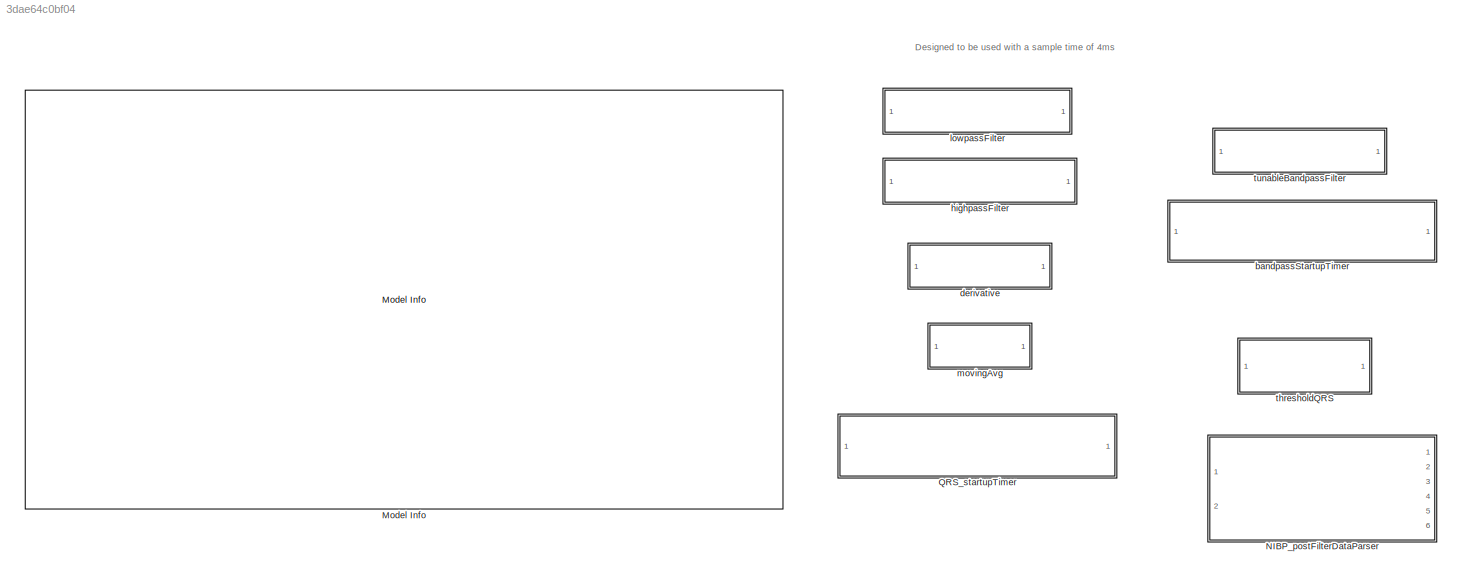
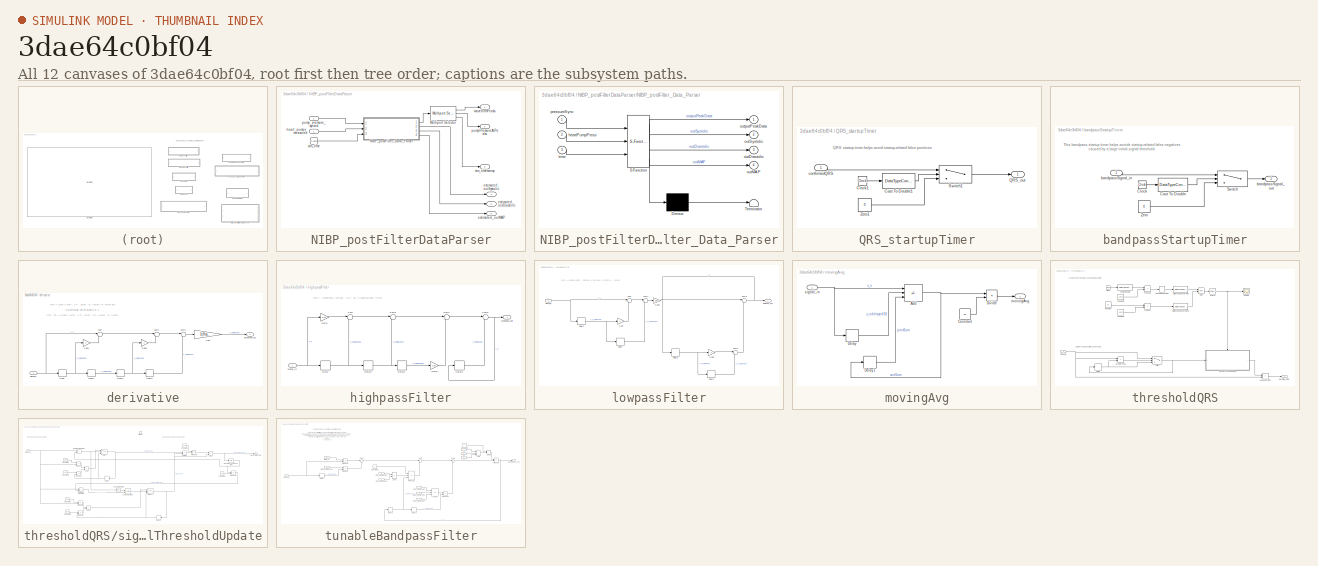
[diagram: thumbnail index - all 12 canvases of the model, root first then tree order]
MODEL slx_3dae64c0bf04
KIND library
CONFIG AbsTol = auto
CONFIG EnableMultiTasking = off
CONFIG FixedStep = auto
CONFIG MaxStep = auto
CONFIG MinStep = auto
CONFIG RelTol = 1e-3
CONFIG SampleTimeConstraint = Unconstrained
CONFIG SolverName = VariableStepAuto
CONFIG StartTime = 0.0
CONFIG StopTime = 10.0
BLOCK [Reference] Model Info  REF=simulink/Model-Wide
Utilities/Model Info
  Ports = []
  SourceBlock = simulink/Model-Wide\nUtilities/Model Info
  SourceProductBaseCode = SL
  SourceType = CMBlock
BLOCK [SubSystem] NIBP_postFilterDataParser
  Ports = [2, 6]
  RequestExecContextInheritance = off
BLOCK [Reference] NIBP_postFilterDataParser/Multiport Selector  REF=dspindex/Multiport
Selector
  Ports = [1, 3]
  SourceBlock = dspindex/Multiport\nSelector
  SourceProductBaseCode = DS
  SourceType = Multiport Selector
BLOCK [SubSystem] NIBP_postFilterDataParser/NIBP_postFilter_Data_Parser
  ErrorFcn = Stateflow.Translate.translate
  PermitHierarchicalResolution = ExplicitOnly
  Ports = [3, 4]
  RequestExecContextInheritance = off
  SFBlockType = MATLAB Function
  TreatAsAtomicUnit = on
BLOCK [Demux] NIBP_postFilterDataParser/NIBP_postFilter_Data_Parser/ Demux 
  Outputs = 1
  Ports = [1, 1]
BLOCK [S-Function] NIBP_postFilterDataParser/NIBP_postFilter_Data_Parser/ SFunction 
  EnableBusSupport = off
  FunctionName = sf_sfun
  PortCounts = [3 5]
  Ports = [3, 5]
  SFcnIsStateOwnerBlock = off
  SFunctionDeploymentMode = off
  Tag = Stateflow S-Function 1
BLOCK [Terminator] NIBP_postFilterDataParser/NIBP_postFilter_Data_Parser/ Terminator 
BLOCK [Inport] NIBP_postFilterDataParser/NIBP_postFilter_Data_Parser/heartPumpPress
  Port = 2
BLOCK [Outport] NIBP_postFilterDataParser/NIBP_postFilter_Data_Parser/outDiastolic
  Port = 3
BLOCK [Outport] NIBP_postFilterDataParser/NIBP_postFilter_Data_Parser/outMAP
  Port = 4
BLOCK [Outport] NIBP_postFilterDataParser/NIBP_postFilter_Data_Parser/outSystolic
  Port = 2
BLOCK [Outport] NIBP_postFilterDataParser/NIBP_postFilter_Data_Parser/outputPeakData
BLOCK [Inport] NIBP_postFilterDataParser/NIBP_postFilter_Data_Parser/pressureSync
BLOCK [Inport] NIBP_postFilterDataParser/NIBP_postFilter_Data_Parser/time
  Port = 3
BLOCK [Outport] NIBP_postFilterDataParser/estimated_outDiastolic
  Port = 5
BLOCK [Outport] NIBP_postFilterDataParser/estimated_outMAP
  Port = 6
BLOCK [Outport] NIBP_postFilterDataParser/estimated_outSystolic
  Port = 4
BLOCK [Inport] NIBP_postFilterDataParser/heart_pumps_measured
  Port = 2
BLOCK [Outport] NIBP_postFilterDataParser/pumpPressureAtPeaks
  Port = 2
BLOCK [Inport] NIBP_postFilterDataParser/pump_pressure_synced
BLOCK [Clock] NIBP_postFilterDataParser/sim_time
BLOCK [Outport] NIBP_postFilterDataParser/sim_timestamp
  Port = 3
BLOCK [Outport] NIBP_postFilterDataParser/waveformPeaks
BLOCK [SubSystem] QRS_startupTimer
  Description = The QRS_startupTimer acts as a temporary buffer right before the final QRS detection output. Any value prior to 3.6 seconds is set to 0. \nAfter 3.6 seconds, the intended confirmed QRS values are allowed through. This buffer helps prevent false positives caused during the \ninitialization of the system prior to 3.6 seconds. Note: The last known false positives occur before 2 seconds, but 3.6 seconds...<+46ch>
  Ports = [1, 1]
  RequestExecContextInheritance = off
BLOCK [DataTypeConversion] QRS_startupTimer/Cast To Double1
  OutDataTypeStr = double
  RndMeth = Floor
  SaturateOnIntegerOverflow = off
BLOCK [Clock] QRS_startupTimer/Clock1
BLOCK [Outport] QRS_startupTimer/QRS_out
BLOCK [Switch] QRS_startupTimer/Switch1
  Criteria = u2 > Threshold
  InputSameDT = off
  SaturateOnIntegerOverflow = off
  Threshold = 900*sampleTime
BLOCK [Constant] QRS_startupTimer/Zero1
  OutDataTypeStr = Inherit: Inherit via back propagation
  Value = 0
BLOCK [Inport] QRS_startupTimer/confirmedQRS
BLOCK [SubSystem] bandpassStartupTimer
  Description = The bandpassStartupTimer acts as a temporary buffer between the first 0.5 seconds of the chosen bandpass and the derivative filters.\nOutputs 0 prior to the 0.5 seconds, and then passes the bandpass filter otuput into the derivative filter after the 0.5 seconds. This component \nhelps eliminate the possiblility of false negatives caused by an abnormally high signal threshold initial values that coul...<+29ch>
  Ports = [1, 1]
  RequestExecContextInheritance = off
BLOCK [DataTypeConversion] bandpassStartupTimer/Cast To Double
  OutDataTypeStr = double
  RndMeth = Floor
  SaturateOnIntegerOverflow = off
BLOCK [Clock] bandpassStartupTimer/Clock
BLOCK [Switch] bandpassStartupTimer/Switch
  Criteria = u2 > Threshold
  InputSameDT = off
  SaturateOnIntegerOverflow = off
  Threshold = 125*sampleTime
BLOCK [Constant] bandpassStartupTimer/Zero
  OutDataTypeStr = Inherit: Inherit via back propagation
  Value = 0
BLOCK [Inport] bandpassStartupTimer/bandpassSignal_in
BLOCK [Outport] bandpassStartupTimer/bandpassSignal_out
BLOCK [SubSystem] derivative
  Description = The derivative filter is meant to be placed after a bandpass filter, and is designed to further amplify the QRS wave \nmagnitude since the QRS wave's rate of change is much larger than that of the remaining frequency components' \nmagnitude.
  Ports = [1, 1]
  RequestExecContextInheritance = off
BLOCK [Delay] derivative/Delay
  DelayLength = 1
  InitialCondition = 0
  InputPortMap = u0
  Ports = [1, 1]
BLOCK [Delay] derivative/Delay1
  DelayLength = 1
  InitialCondition = 0
  InputPortMap = u0
  Ports = [1, 1]
BLOCK [Delay] derivative/Delay2
  DelayLength = 1
  InitialCondition = 0
  InputPortMap = u0
  Ports = [1, 1]
BLOCK [Delay] derivative/Delay3
  DelayLength = 1
  InitialCondition = 0
  InputPortMap = u0
  Ports = [1, 1]
BLOCK [Gain] derivative/Gain
  Gain = 1/(8*sampleTime)
BLOCK [Gain] derivative/Gain1
  Gain = 2
BLOCK [Gain] derivative/Gain2
  Gain = 2
BLOCK [Sum] derivative/Sum
  Inputs = |++
  Ports = [2, 1]
BLOCK [Sum] derivative/Sum1
  Inputs = |+-
  Ports = [2, 1]
BLOCK [Sum] derivative/Sum2
  Inputs = |+-
  Ports = [2, 1]
BLOCK [Outport] derivative/derivative_out
BLOCK [Inport] derivative/signal_in
BLOCK [SubSystem] highpassFilter
  Description = Highpass filter described by the following difference equation:\ny[n] = - (1/32)*x[n] + x[n-16] - x [n - 17] + (1/32)*x[n-32] + y[n-1]
  Ports = [1, 1]
  RequestExecContextInheritance = off
BLOCK [Delay] highpassFilter/Delay
  DelayLength = 16
  InitialCondition = 0
  InputPortMap = u0
  Ports = [1, 1]
BLOCK [Delay] highpassFilter/Delay1
  DelayLength = 15
  InitialCondition = 0
  InputPortMap = u0
  Ports = [1, 1]
BLOCK [Delay] highpassFilter/Delay2
  DelayLength = 1
  InitialCondition = 0
  InputPortMap = u0
  Ports = [1, 1]
BLOCK [Delay] highpassFilter/Delay3
  DelayLength = 1
  InitialCondition = 0
  InputPortMap = u0
  Ports = [1, 1]
BLOCK [Gain] highpassFilter/Gain1
  Gain = 1/32
BLOCK [Gain] highpassFilter/Gain2
  Gain = 1/32
BLOCK [Sum] highpassFilter/Sum
  Inputs = |-+
  Ports = [2, 1]
BLOCK [Sum] highpassFilter/Sum1
  Inputs = |++
  Ports = [2, 1]
BLOCK [Sum] highpassFilter/Sum2
  Inputs = |++
  Ports = [2, 1]
BLOCK [Sum] highpassFilter/Sum3
  Inputs = |+-
  Ports = [2, 1]
BLOCK [Outport] highpassFilter/highpass_out
BLOCK [Inport] highpassFilter/signal_in
BLOCK [SubSystem] lowpassFilter
  Description = Lowpass filter described by the below difference equation:\ny[n] = (1/36)*(x[n] - 2x[n-6] + x[n-12]) + 2y[n-1] - y[n-2]
  Ports = [1, 1]
  RequestExecContextInheritance = off
BLOCK [Delay] lowpassFilter/Delay
  DelayLength = 6
  InitialCondition = 0
  InputPortMap = u0
  Ports = [1, 1]
BLOCK [Delay] lowpassFilter/Delay1
  DelayLength = 6
  InitialCondition = 0
  InputPortMap = u0
  Ports = [1, 1]
BLOCK [Delay] lowpassFilter/Delay2
  DelayLength = 1
  InitialCondition = 0
  InputPortMap = u0
  Ports = [1, 1]
BLOCK [Delay] lowpassFilter/Delay3
  DelayLength = 1
  InitialCondition = 0
  InputPortMap = u0
  Ports = [1, 1]
BLOCK [Gain] lowpassFilter/Gain
  Gain = 2
BLOCK [Gain] lowpassFilter/Gain1
  Gain = 2
BLOCK [Gain] lowpassFilter/Gain2
  Gain = 1/36
BLOCK [Sum] lowpassFilter/Sum
  Inputs = |+-
  Ports = [2, 1]
BLOCK [Sum] lowpassFilter/Sum1
  Inputs = |++
  Ports = [2, 1]
BLOCK [Sum] lowpassFilter/Sum2
  Inputs = |+-
  Ports = [2, 1]
BLOCK [Sum] lowpassFilter/Sum3
  Inputs = |++
  Ports = [2, 1]
BLOCK [Outport] lowpassFilter/lowpass_out
BLOCK [Inport] lowpassFilter/signal_in
BLOCK [SubSystem] movingAvg
  Description = The movingAvg (moving average) filter is designed to be placed after a squaring function (which should have been placed right after the derivative filter),\nand is a done so that the area where the QRS is present is expanded in regards to timespan. \n\nThe moving average filter takes the average of the most recent 38 samples. This is implemented with a running sum of the most recent 38 samples \nwith ...<+112ch>
  Ports = [1, 1]
  RequestExecContextInheritance = off
BLOCK [Sum] movingAvg/Add
  IconShape = rectangular
  Inputs = +-+
  Ports = [3, 1]
BLOCK [Constant] movingAvg/Constant
  Value = 38
BLOCK [Delay] movingAvg/Delay
  DelayLength = 38
  InitialCondition = 0
  InputPortMap = u0
  Ports = [1, 1]
BLOCK [Delay] movingAvg/Delay1
  DelayLength = 1
  InitialCondition = 0
  InputPortMap = u0
  Ports = [1, 1]
BLOCK [Product] movingAvg/Divide
  Inputs = */
  Ports = [2, 1]
BLOCK [Outport] movingAvg/movingAvg
BLOCK [Inport] movingAvg/signal_in
BLOCK [SubSystem] thresholdQRS
  Description = The tresholdQRS is a block that is used at two different locations in the Pan-Tompkin Algorithm. \nThe first location this block is used is right after the chosen bandpass filter and right before a delay that is placed to sync the output \nof the first thresholdQRS with that of the second thresholdQRS. The signal that comes out of the delay is placed through an AND gate \nwith the signal that comes o...<+356ch>
  Ports = [1, 1]
  RequestExecContextInheritance = off
BLOCK [DataTypeConversion] thresholdQRS/Cast To Double
  OutDataTypeStr = double
  RndMeth = Floor
  SaturateOnIntegerOverflow = off
BLOCK [Clock] thresholdQRS/Clock
BLOCK [Constant] thresholdQRS/Constant
  Value = 0.1
BLOCK [Constant] thresholdQRS/Constant1
  Value = 1000
BLOCK [Constant] thresholdQRS/Constant2
  Value = 1000
BLOCK [DataTypeConversion] thresholdQRS/Data Type Conversion
  OutDataTypeStr = uint32
  RndMeth = Floor
  SaturateOnIntegerOverflow = off
BLOCK [DataTypeConversion] thresholdQRS/Data Type Conversion1
  OutDataTypeStr = uint32
  RndMeth = Floor
  SaturateOnIntegerOverflow = off
BLOCK [Delay] thresholdQRS/Delay
  DelayLength = 1
  InitialCondition = 0
  InputPortMap = u0
  Ports = [1, 1]
BLOCK [RelationalOperator] thresholdQRS/GreaterThan
  InputSameDT = off
  Operator = >
  OutDataTypeStr = boolean
  Ports = [2, 1]
  RndMeth = Simplest
BLOCK [Reference] thresholdQRS/IsZero  REF=simulink/Logic and Bit
Operations/Compare
To Zero
  Ports = [1, 1]
  SourceBlock = simulink/Logic and Bit\nOperations/Compare\nTo Zero
  SourceProductBaseCode = SL
  SourceType = Compare To Zero
BLOCK [Math] thresholdQRS/Mod
  Operator = mod
  Ports = [2, 1]
BLOCK [Product] thresholdQRS/Product
  Ports = [2, 1]
BLOCK [Product] thresholdQRS/Product1
  Ports = [2, 1]
BLOCK [Rounding] thresholdQRS/Rounding Function
BLOCK [Scope] thresholdQRS/Scope
  Floating = off
  NumInputPorts = 1
  Ports = [1]
  ScopeSpecificationString = Simulink.scopes.TimeScopeBlockCfg('CurrentConfiguration', extmgr.ConfigurationSet(extmgr.Configuration('Core','General UI',true),extmgr.Configuration('Core','Source UI',true),extmgr.Configuration('Sources','WiredSimulink',true,'DataLoggingVariableName','ScopeData1'),extmgr.Configuration('Visuals','Time Domain',true,'SerializedDisplays',{struct('MinYLimReal','-0.125','MaxYLimReal','1.125','YLabelRe...<+1408ch>
BLOCK [Switch] thresholdQRS/Switch
  Criteria = u2 > Threshold
  InputSameDT = off
  SaturateOnIntegerOverflow = off
BLOCK [RelationalOperator] thresholdQRS/checkForQRS
  InputSameDT = off
  Operator = <
  OutDataTypeStr = boolean
  Ports = [2, 1]
  RndMeth = Simplest
BLOCK [Outport] thresholdQRS/possible_QRS
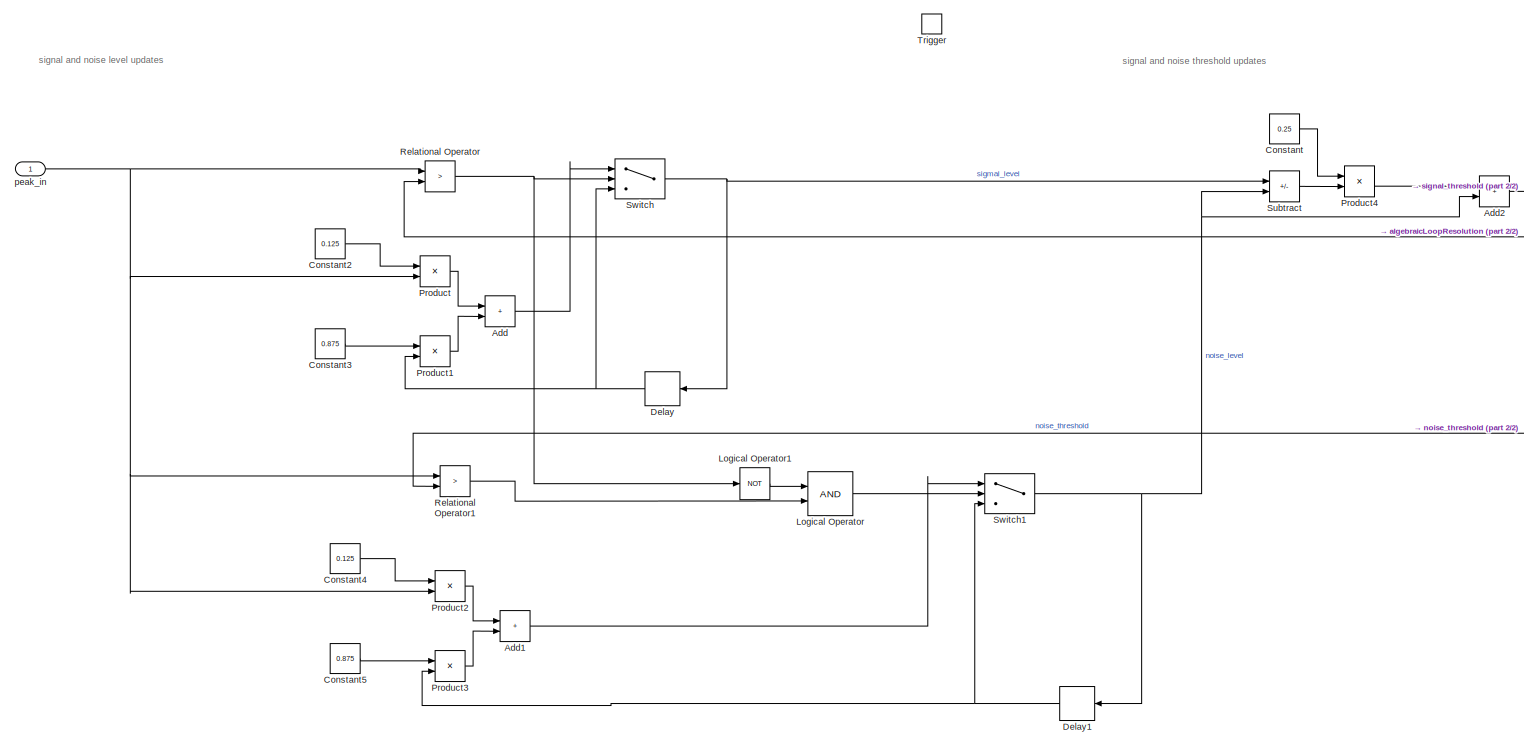
[diagram: thresholdQRS/signalThresholdUpdate - part 1/2, most of the canvas]
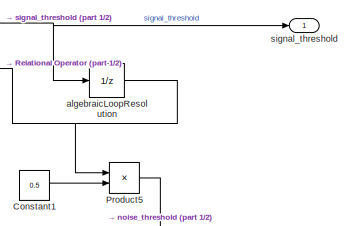
[diagram: thresholdQRS/signalThresholdUpdate - part 2/2, middle right region]
BLOCK [SubSystem] thresholdQRS/signalThresholdUpdate
  Ports = [1, 1, 0, 1]
  RequestExecContextInheritance = off
BLOCK [Sum] thresholdQRS/signalThresholdUpdate/Add
  IconShape = rectangular
  Ports = [2, 1]
BLOCK [Sum] thresholdQRS/signalThresholdUpdate/Add1
  IconShape = rectangular
  Ports = [2, 1]
BLOCK [Sum] thresholdQRS/signalThresholdUpdate/Add2
  IconShape = rectangular
  Ports = [2, 1]
BLOCK [Constant] thresholdQRS/signalThresholdUpdate/Constant
  Value = 0.25
BLOCK [Constant] thresholdQRS/signalThresholdUpdate/Constant1
  Value = 0.5
BLOCK [Constant] thresholdQRS/signalThresholdUpdate/Constant2
  Value = 0.125
BLOCK [Constant] thresholdQRS/signalThresholdUpdate/Constant3
  Value = 0.875
BLOCK [Constant] thresholdQRS/signalThresholdUpdate/Constant4
  Value = 0.125
BLOCK [Constant] thresholdQRS/signalThresholdUpdate/Constant5
  Value = 0.875
BLOCK [Delay] thresholdQRS/signalThresholdUpdate/Delay
  DelayLength = 1
  InitialCondition = 0
  InputPortMap = u0
  Ports = [1, 1]
BLOCK [Delay] thresholdQRS/signalThresholdUpdate/Delay1
  DelayLength = 1
  InitialCondition = 0
  InputPortMap = u0
  Ports = [1, 1]
BLOCK [Logic] thresholdQRS/signalThresholdUpdate/Logical Operator
  AllPortsSameDT = off
  IconShape = distinctive
  OutDataTypeStr = boolean
  Ports = [2, 1]
BLOCK [Logic] thresholdQRS/signalThresholdUpdate/Logical Operator1
  AllPortsSameDT = off
  IconShape = distinctive
  Operator = NOT
  OutDataTypeStr = boolean
  Ports = [1, 1]
BLOCK [Product] thresholdQRS/signalThresholdUpdate/Product
  Ports = [2, 1]
BLOCK [Product] thresholdQRS/signalThresholdUpdate/Product1
  Ports = [2, 1]
BLOCK [Product] thresholdQRS/signalThresholdUpdate/Product2
  Ports = [2, 1]
BLOCK [Product] thresholdQRS/signalThresholdUpdate/Product3
  Ports = [2, 1]
BLOCK [Product] thresholdQRS/signalThresholdUpdate/Product4
  Ports = [2, 1]
BLOCK [Product] thresholdQRS/signalThresholdUpdate/Product5
  Ports = [2, 1]
BLOCK [RelationalOperator] thresholdQRS/signalThresholdUpdate/Relational Operator
  InputSameDT = off
  Operator = >
  OutDataTypeStr = boolean
  Ports = [2, 1]
  RndMeth = Simplest
BLOCK [RelationalOperator] thresholdQRS/signalThresholdUpdate/Relational Operator1
  InputSameDT = off
  Operator = >
  OutDataTypeStr = boolean
  Ports = [2, 1]
  RndMeth = Simplest
BLOCK [Sum] thresholdQRS/signalThresholdUpdate/Subtract
  IconShape = rectangular
  Inputs = +-
  Ports = [2, 1]
BLOCK [Switch] thresholdQRS/signalThresholdUpdate/Switch
  Criteria = u2 > Threshold
  InputSameDT = off
  SaturateOnIntegerOverflow = off
BLOCK [Switch] thresholdQRS/signalThresholdUpdate/Switch1
  Criteria = u2 > Threshold
  InputSameDT = off
  SaturateOnIntegerOverflow = off
BLOCK [TriggerPort] thresholdQRS/signalThresholdUpdate/Trigger
  PortDimensions = 1
  Ports = []
  StatesWhenEnabling = held
  VariantControl = (inherit)
BLOCK [UnitDelay] thresholdQRS/signalThresholdUpdate/algebraicLoopResolution
  HasFrameUpgradeWarning = on
  SampleTime = -1
BLOCK [Inport] thresholdQRS/signalThresholdUpdate/peak_in
BLOCK [Outport] thresholdQRS/signalThresholdUpdate/signal_threshold
BLOCK [Inport] thresholdQRS/signal_in
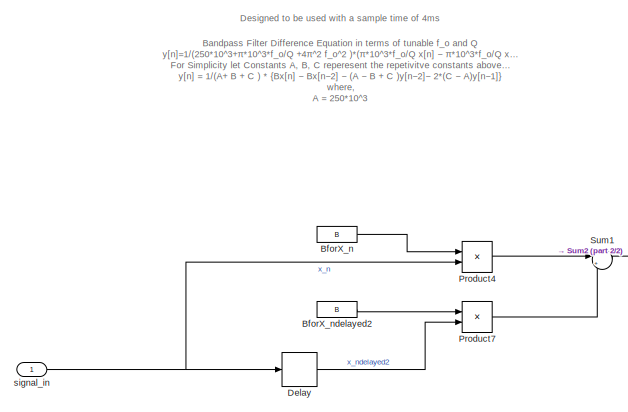
[diagram: tunableBandpassFilter - part 1/2, top left region]
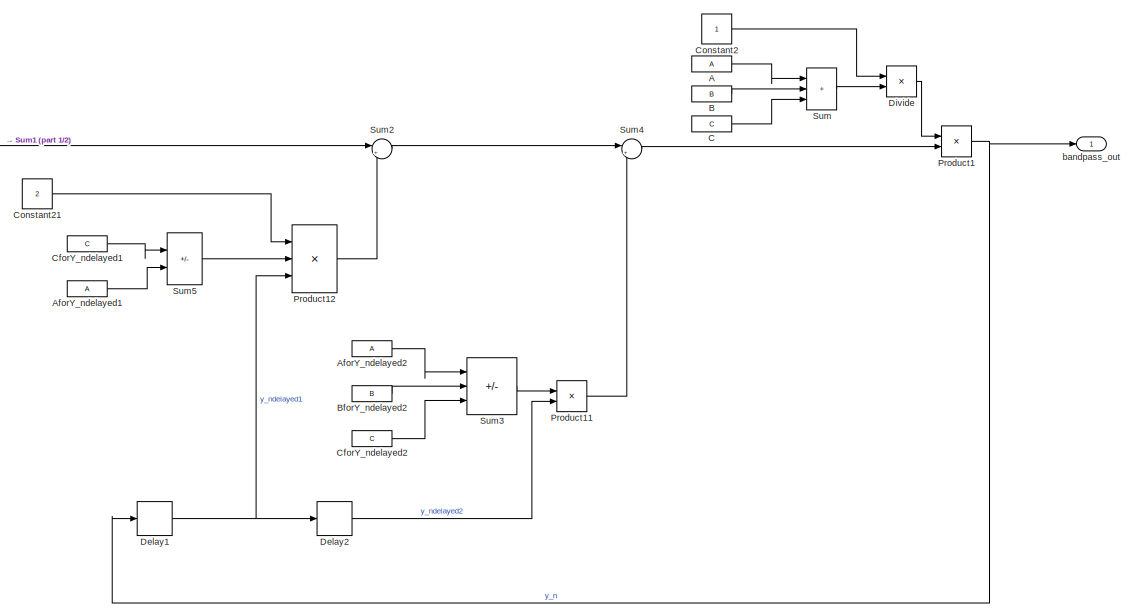
[diagram: tunableBandpassFilter - part 2/2, right side, full height]
BLOCK [SubSystem] tunableBandpassFilter
  Description = Bandpass Filter described by the following diference equation in terms of tunable centerFrequency f_o and qualityFactor Q:\ny[n]=1/(250*10^3+π*10^3*f_o/Q  +4π^2 f_o^2 )*(π*10^3*f_o/Q x[n]  − π*10^3*f_o/Q x[n−2]  −(250*10^3−π*10^3*f_o/Q  +4π^2 f_o^2 )y[n−2]−2*(4π^2 f_o^2  −250*10^3 )y[n−1])\n\n\nFor simplicity, let constants A, B, and C be subsystems that contain the corresponding defintiions of the co...<+148ch>
  Ports = [1, 1]
  RequestExecContextInheritance = off
BLOCK [Reference] tunableBandpassFilter/A  REF=coefficientsOfTunableBandpassFilter/A
  Ports = [0, 1]
  SourceBlock = coefficientsOfTunableBandpassFilter/A
  SourceType = SubSystem
BLOCK [Reference] tunableBandpassFilter/AforY_ndelayed1  REF=coefficientsOfTunableBandpassFilter/A
  Ports = [0, 1]
  SourceBlock = coefficientsOfTunableBandpassFilter/A
  SourceType = SubSystem
BLOCK [Reference] tunableBandpassFilter/AforY_ndelayed2  REF=coefficientsOfTunableBandpassFilter/A
  Ports = [0, 1]
  SourceBlock = coefficientsOfTunableBandpassFilter/A
  SourceType = SubSystem
BLOCK [Reference] tunableBandpassFilter/B  REF=coefficientsOfTunableBandpassFilter/B
  Ports = [0, 1]
  SourceBlock = coefficientsOfTunableBandpassFilter/B
  SourceType = SubSystem
BLOCK [Reference] tunableBandpassFilter/BforX_n  REF=coefficientsOfTunableBandpassFilter/B
  Ports = [0, 1]
  SourceBlock = coefficientsOfTunableBandpassFilter/B
  SourceType = SubSystem
BLOCK [Reference] tunableBandpassFilter/BforX_ndelayed2  REF=coefficientsOfTunableBandpassFilter/B
  Ports = [0, 1]
  SourceBlock = coefficientsOfTunableBandpassFilter/B
  SourceType = SubSystem
BLOCK [Reference] tunableBandpassFilter/BforY_ndelayed2  REF=coefficientsOfTunableBandpassFilter/B
  Ports = [0, 1]
  SourceBlock = coefficientsOfTunableBandpassFilter/B
  SourceType = SubSystem
BLOCK [Reference] tunableBandpassFilter/C  REF=coefficientsOfTunableBandpassFilter/C
  Ports = [0, 1]
  SourceBlock = coefficientsOfTunableBandpassFilter/C
  SourceType = SubSystem
BLOCK [Reference] tunableBandpassFilter/CforY_ndelayed1  REF=coefficientsOfTunableBandpassFilter/C
  Ports = [0, 1]
  SourceBlock = coefficientsOfTunableBandpassFilter/C
  SourceType = SubSystem
BLOCK [Reference] tunableBandpassFilter/CforY_ndelayed2  REF=coefficientsOfTunableBandpassFilter/C
  Ports = [0, 1]
  SourceBlock = coefficientsOfTunableBandpassFilter/C
  SourceType = SubSystem
BLOCK [Constant] tunableBandpassFilter/Constant2
BLOCK [Constant] tunableBandpassFilter/Constant21
  Value = 2
BLOCK [Delay] tunableBandpassFilter/Delay
  InitialCondition = 0
  InputPortMap = u0
  Ports = [1, 1]
BLOCK [Delay] tunableBandpassFilter/Delay1
  DelayLength = 1
  InitialCondition = 0
  InputPortMap = u0
  Ports = [1, 1]
BLOCK [Delay] tunableBandpassFilter/Delay2
  DelayLength = 1
  InitialCondition = 0
  InputPortMap = u0
  Ports = [1, 1]
BLOCK [Product] tunableBandpassFilter/Divide
  Inputs = */
  Ports = [2, 1]
BLOCK [Product] tunableBandpassFilter/Product1
  Ports = [2, 1]
BLOCK [Product] tunableBandpassFilter/Product11
  Ports = [2, 1]
BLOCK [Product] tunableBandpassFilter/Product12
  Inputs = 3
  Ports = [3, 1]
BLOCK [Product] tunableBandpassFilter/Product4
  Ports = [2, 1]
BLOCK [Product] tunableBandpassFilter/Product7
  Ports = [2, 1]
BLOCK [Sum] tunableBandpassFilter/Sum
  IconShape = rectangular
  Inputs = |+++
  Ports = [3, 1]
BLOCK [Sum] tunableBandpassFilter/Sum1
  Inputs = |+-
  Ports = [2, 1]
BLOCK [Sum] tunableBandpassFilter/Sum2
  Inputs = |+-
  Ports = [2, 1]
BLOCK [Sum] tunableBandpassFilter/Sum3
  IconShape = rectangular
  Inputs = |+-+
  Ports = [3, 1]
BLOCK [Sum] tunableBandpassFilter/Sum4
  Inputs = |+-
  Ports = [2, 1]
BLOCK [Sum] tunableBandpassFilter/Sum5
  IconShape = rectangular
  Inputs = |+-
  Ports = [2, 1]
BLOCK [Outport] tunableBandpassFilter/bandpass_out
BLOCK [Inport] tunableBandpassFilter/signal_in
ANNOTATION (root): Designed to be used with a sample time of 4ms
ANNOTATION QRS_startupTimer: QRS startup timer helps avoid startup-related false positives
ANNOTATION bandpassStartupTimer: This bandpass startup timer helps avoids startup-related false negatives caused by a large initial signal threshold.
ANNOTATION derivative: y(nT) = (1/8T) [-x(nT - 2 T) - 2x(nT - T) + 2x(nT + T) +x(nT+ 2T)] Mathematically shifted all delays by 2 y(nT - 2T) = (1/(8T)) [-x(nT - 4 T) - 2x(nT - 3 T) + 2x(nT - T) + x(nT)]
ANNOTATION highpassFilter: y[n] = - (1/32)*x[n] + x[n-16] - x [n - 17] + (1/32)*x[n-32] + y[n-1]
ANNOTATION lowpassFilter: y[n] = (1/36)*(x[n] - 2x[n-6] + x[n-12]) + 2y[n-1] - y[n-2]
ANNOTATION thresholdQRS: 100ms clock for signal threshold update enabling
ANNOTATION thresholdQRS: Obtain largest peak within 100ms section
ANNOTATION thresholdQRS/signalThresholdUpdate: signal and noise level updates
ANNOTATION thresholdQRS/signalThresholdUpdate: signal and noise threshold updates
ANNOTATION tunableBandpassFilter: Bandpass Filter Difference Equation in terms of tunable f_o and Q y[n]=1/(250*10^3+π*10^3*f_o/Q +4π^2 f_o^2 )*(π*10^3*f_o/Q x[n] − π*10^3*f_o/Q x[n−2] −(250*10^3−π*10^3*f_o/Q +4π^2 f_o^2 )y[n−2]−2*(4π^2 f_o^2 −250*10^3 )y[n−1]) For Simplicity let Constants A, B, C reperesent the repetivitve constants above and create subsystems to contain the defintiion of A, B, C: y[n] = 1/(A+ B + C ) * {Bx[n] − ...<+98ch>
ANNOTATION tunableBandpassFilter: Designed to be used with a sample time of 4ms
LINE NIBP_postFilterDataParser/Multiport Selector:1 -> NIBP_postFilterDataParser/waveformPeaks:1
LINE NIBP_postFilterDataParser/Multiport Selector:2 -> NIBP_postFilterDataParser/pumpPressureAtPeaks:1
LINE NIBP_postFilterDataParser/Multiport Selector:3 -> NIBP_postFilterDataParser/sim_timestamp:1
LINE NIBP_postFilterDataParser/NIBP_postFilter_Data_Parser:1 -> NIBP_postFilterDataParser/Multiport Selector:1
LINE NIBP_postFilterDataParser/NIBP_postFilter_Data_Parser:2 -> NIBP_postFilterDataParser/estimated_outSystolic:1
LINE NIBP_postFilterDataParser/NIBP_postFilter_Data_Parser:3 -> NIBP_postFilterDataParser/estimated_outDiastolic:1
LINE NIBP_postFilterDataParser/NIBP_postFilter_Data_Parser:4 -> NIBP_postFilterDataParser/estimated_outMAP:1
LINE NIBP_postFilterDataParser/heart_pumps_measured:1 -> NIBP_postFilterDataParser/NIBP_postFilter_Data_Parser:2
LINE NIBP_postFilterDataParser/pump_pressure_synced:1 -> NIBP_postFilterDataParser/NIBP_postFilter_Data_Parser:1
LINE NIBP_postFilterDataParser/sim_time:1 -> NIBP_postFilterDataParser/NIBP_postFilter_Data_Parser:3
LINE QRS_startupTimer/Cast To Double1:1 -> QRS_startupTimer/Switch1:2
LINE QRS_startupTimer/Clock1:1 -> QRS_startupTimer/Cast To Double1:1
LINE QRS_startupTimer/Switch1:1 -> QRS_startupTimer/QRS_out:1
LINE QRS_startupTimer/Zero1:1 -> QRS_startupTimer/Switch1:3
LINE QRS_startupTimer/confirmedQRS:1 -> QRS_startupTimer/Switch1:1
LINE bandpassStartupTimer/Cast To Double:1 -> bandpassStartupTimer/Switch:2
LINE bandpassStartupTimer/Clock:1 -> bandpassStartupTimer/Cast To Double:1
LINE bandpassStartupTimer/Switch:1 -> bandpassStartupTimer/bandpassSignal_out:1
LINE bandpassStartupTimer/Zero:1 -> bandpassStartupTimer/Switch:3
LINE bandpassStartupTimer/bandpassSignal_in:1 -> bandpassStartupTimer/Switch:1
LINE derivative/Delay1:1 -> derivative/Delay2:1
NET derivative/Delay2:1 -> derivative/Delay3:1, derivative/Gain2:1
LINE derivative/Delay3:1 -> derivative/Sum2:2
NET derivative/Delay:1 -> derivative/Delay1:1, derivative/Gain1:1
LINE derivative/Gain1:1 -> derivative/Sum:2
LINE derivative/Gain2:1 -> derivative/Sum1:2
LINE derivative/Gain:1 -> derivative/derivative_out:1
LINE derivative/Sum1:1 -> derivative/Sum2:1
LINE derivative/Sum2:1 -> derivative/Gain:1
LINE derivative/Sum:1 -> derivative/Sum1:1
NET derivative/signal_in:1 -> derivative/Delay:1, derivative/Sum:1
LINE highpassFilter/Delay1:1 -> highpassFilter/Gain2:1
LINE highpassFilter/Delay2:1 -> highpassFilter/Sum2:2
NET highpassFilter/Delay3:1 -> highpassFilter/Delay1:1, highpassFilter/Sum3:2
NET highpassFilter/Delay:1 -> highpassFilter/Delay3:1, highpassFilter/Sum:2
LINE highpassFilter/Gain1:1 -> highpassFilter/Sum:1
LINE highpassFilter/Gain2:1 -> highpassFilter/Sum1:2
LINE highpassFilter/Sum1:1 -> highpassFilter/Sum2:1
NET highpassFilter/Sum2:1 -> highpassFilter/Delay2:1, highpassFilter/highpass_out:1
LINE highpassFilter/Sum3:1 -> highpassFilter/Sum1:1
LINE highpassFilter/Sum:1 -> highpassFilter/Sum3:1
NET highpassFilter/signal_in:1 -> highpassFilter/Delay:1, highpassFilter/Gain1:1
NET lowpassFilter/Delay1:1 -> lowpassFilter/Delay:1, lowpassFilter/Gain:1
NET lowpassFilter/Delay2:1 -> lowpassFilter/Delay3:1, lowpassFilter/Gain1:1
LINE lowpassFilter/Delay3:1 -> lowpassFilter/Sum2:2
LINE lowpassFilter/Delay:1 -> lowpassFilter/Sum1:2
LINE lowpassFilter/Gain1:1 -> lowpassFilter/Sum2:1
LINE lowpassFilter/Gain2:1 -> lowpassFilter/Sum3:1
LINE lowpassFilter/Gain:1 -> lowpassFilter/Sum:2
LINE lowpassFilter/Sum1:1 -> lowpassFilter/Gain2:1
LINE lowpassFilter/Sum2:1 -> lowpassFilter/Sum3:2
NET lowpassFilter/Sum3:1 -> lowpassFilter/Delay2:1, lowpassFilter/lowpass_out:1
LINE lowpassFilter/Sum:1 -> lowpassFilter/Sum1:1
NET lowpassFilter/signal_in:1 -> lowpassFilter/Delay1:1, lowpassFilter/Sum:1
NET movingAvg/Add:1 -> movingAvg/Delay1:1, movingAvg/Divide:1
LINE movingAvg/Constant:1 -> movingAvg/Divide:2
LINE movingAvg/Delay1:1 -> movingAvg/Add:3
LINE movingAvg/Delay:1 -> movingAvg/Add:2
LINE movingAvg/Divide:1 -> movingAvg/movingAvg:1
NET movingAvg/signal_in:1 -> movingAvg/Add:1, movingAvg/Delay:1
LINE thresholdQRS/Cast To Double:1 -> thresholdQRS/Product1:1
LINE thresholdQRS/Clock:1 -> thresholdQRS/Cast To Double:1
LINE thresholdQRS/Constant1:1 -> thresholdQRS/Product:2
LINE thresholdQRS/Constant2:1 -> thresholdQRS/Product1:2
LINE thresholdQRS/Constant:1 -> thresholdQRS/Product:1
LINE thresholdQRS/Data Type Conversion1:1 -> thresholdQRS/Mod:2
LINE thresholdQRS/Data Type Conversion:1 -> thresholdQRS/Mod:1
NET thresholdQRS/Delay:1 -> thresholdQRS/GreaterThan:2, thresholdQRS/Switch:3
LINE thresholdQRS/GreaterThan:1 -> thresholdQRS/Switch:2
NET thresholdQRS/IsZero:1 -> thresholdQRS/Scope:1, thresholdQRS/signalThresholdUpdate:trigger
LINE thresholdQRS/Mod:1 -> thresholdQRS/IsZero:1
LINE thresholdQRS/Product1:1 -> thresholdQRS/Rounding Function:1
LINE thresholdQRS/Product:1 -> thresholdQRS/Data Type Conversion1:1
LINE thresholdQRS/Rounding Function:1 -> thresholdQRS/Data Type Conversion:1
NET thresholdQRS/Switch:1 -> thresholdQRS/Delay:1, thresholdQRS/signalThresholdUpdate:1
LINE thresholdQRS/checkForQRS:1 -> thresholdQRS/possible_QRS:1
LINE thresholdQRS/signalThresholdUpdate/Add1:1 -> thresholdQRS/signalThresholdUpdate/Switch1:1
NET thresholdQRS/signalThresholdUpdate/Add2:1 -> thresholdQRS/signalThresholdUpdate/algebraicLoopResolution:1, thresholdQRS/signalThresholdUpdate/signal_threshold:1
LINE thresholdQRS/signalThresholdUpdate/Add:1 -> thresholdQRS/signalThresholdUpdate/Switch:1
LINE thresholdQRS/signalThresholdUpdate/Constant1:1 -> thresholdQRS/signalThresholdUpdate/Product5:2
LINE thresholdQRS/signalThresholdUpdate/Constant2:1 -> thresholdQRS/signalThresholdUpdate/Product:1
LINE thresholdQRS/signalThresholdUpdate/Constant3:1 -> thresholdQRS/signalThresholdUpdate/Product1:1
LINE thresholdQRS/signalThresholdUpdate/Constant4:1 -> thresholdQRS/signalThresholdUpdate/Product2:1
LINE thresholdQRS/signalThresholdUpdate/Constant5:1 -> thresholdQRS/signalThresholdUpdate/Product3:1
LINE thresholdQRS/signalThresholdUpdate/Constant:1 -> thresholdQRS/signalThresholdUpdate/Product4:1
NET thresholdQRS/signalThresholdUpdate/Delay1:1 -> thresholdQRS/signalThresholdUpdate/Product3:2, thresholdQRS/signalThresholdUpdate/Switch1:3
NET thresholdQRS/signalThresholdUpdate/Delay:1 -> thresholdQRS/signalThresholdUpdate/Product1:2, thresholdQRS/signalThresholdUpdate/Switch:3
LINE thresholdQRS/signalThresholdUpdate/Logical Operator1:1 -> thresholdQRS/signalThresholdUpdate/Logical Operator:1
LINE thresholdQRS/signalThresholdUpdate/Logical Operator:1 -> thresholdQRS/signalThresholdUpdate/Switch1:2
LINE thresholdQRS/signalThresholdUpdate/Product1:1 -> thresholdQRS/signalThresholdUpdate/Add:2
LINE thresholdQRS/signalThresholdUpdate/Product2:1 -> thresholdQRS/signalThresholdUpdate/Add1:1
LINE thresholdQRS/signalThresholdUpdate/Product3:1 -> thresholdQRS/signalThresholdUpdate/Add1:2
LINE thresholdQRS/signalThresholdUpdate/Product4:1 -> thresholdQRS/signalThresholdUpdate/Add2:1
LINE thresholdQRS/signalThresholdUpdate/Product5:1 -> thresholdQRS/signalThresholdUpdate/Relational Operator1:2
LINE thresholdQRS/signalThresholdUpdate/Product:1 -> thresholdQRS/signalThresholdUpdate/Add:1
LINE thresholdQRS/signalThresholdUpdate/Relational Operator1:1 -> thresholdQRS/signalThresholdUpdate/Logical Operator:2
NET thresholdQRS/signalThresholdUpdate/Relational Operator:1 -> thresholdQRS/signalThresholdUpdate/Logical Operator1:1, thresholdQRS/signalThresholdUpdate/Switch:2
LINE thresholdQRS/signalThresholdUpdate/Subtract:1 -> thresholdQRS/signalThresholdUpdate/Product4:2
NET thresholdQRS/signalThresholdUpdate/Switch1:1 -> thresholdQRS/signalThresholdUpdate/Add2:2, thresholdQRS/signalThresholdUpdate/Delay1:1, thresholdQRS/signalThresholdUpdate/Subtract:2
NET thresholdQRS/signalThresholdUpdate/Switch:1 -> thresholdQRS/signalThresholdUpdate/Delay:1, thresholdQRS/signalThresholdUpdate/Subtract:1
NET thresholdQRS/signalThresholdUpdate/algebraicLoopResolution:1 -> thresholdQRS/signalThresholdUpdate/Product5:1, thresholdQRS/signalThresholdUpdate/Relational Operator:2
NET thresholdQRS/signalThresholdUpdate/peak_in:1 -> thresholdQRS/signalThresholdUpdate/Product2:2, thresholdQRS/signalThresholdUpdate/Product:2, thresholdQRS/signalThresholdUpdate/Relational Operator1:1, thresholdQRS/signalThresholdUpdate/Relational Operator:1
LINE thresholdQRS/signalThresholdUpdate:1 -> thresholdQRS/checkForQRS:1
NET thresholdQRS/signal_in:1 -> thresholdQRS/GreaterThan:1, thresholdQRS/Switch:1, thresholdQRS/checkForQRS:2
LINE tunableBandpassFilter/A:1 -> tunableBandpassFilter/Sum:1
LINE tunableBandpassFilter/AforY_ndelayed1:1 -> tunableBandpassFilter/Sum5:2
LINE tunableBandpassFilter/AforY_ndelayed2:1 -> tunableBandpassFilter/Sum3:1
LINE tunableBandpassFilter/B:1 -> tunableBandpassFilter/Sum:2
LINE tunableBandpassFilter/BforX_n:1 -> tunableBandpassFilter/Product4:1
LINE tunableBandpassFilter/BforX_ndelayed2:1 -> tunableBandpassFilter/Product7:1
LINE tunableBandpassFilter/BforY_ndelayed2:1 -> tunableBandpassFilter/Sum3:2
LINE tunableBandpassFilter/C:1 -> tunableBandpassFilter/Sum:3
LINE tunableBandpassFilter/CforY_ndelayed1:1 -> tunableBandpassFilter/Sum5:1
LINE tunableBandpassFilter/CforY_ndelayed2:1 -> tunableBandpassFilter/Sum3:3
LINE tunableBandpassFilter/Constant21:1 -> tunableBandpassFilter/Product12:1
LINE tunableBandpassFilter/Constant2:1 -> tunableBandpassFilter/Divide:1
NET tunableBandpassFilter/Delay1:1 -> tunableBandpassFilter/Delay2:1, tunableBandpassFilter/Product12:3
LINE tunableBandpassFilter/Delay2:1 -> tunableBandpassFilter/Product11:2
LINE tunableBandpassFilter/Delay:1 -> tunableBandpassFilter/Product7:2
LINE tunableBandpassFilter/Divide:1 -> tunableBandpassFilter/Product1:1
LINE tunableBandpassFilter/Product11:1 -> tunableBandpassFilter/Sum4:2
LINE tunableBandpassFilter/Product12:1 -> tunableBandpassFilter/Sum2:2
NET tunableBandpassFilter/Product1:1 -> tunableBandpassFilter/Delay1:1, tunableBandpassFilter/bandpass_out:1
LINE tunableBandpassFilter/Product4:1 -> tunableBandpassFilter/Sum1:1
LINE tunableBandpassFilter/Product7:1 -> tunableBandpassFilter/Sum1:2
LINE tunableBandpassFilter/Sum1:1 -> tunableBandpassFilter/Sum2:1
LINE tunableBandpassFilter/Sum2:1 -> tunableBandpassFilter/Sum4:1
LINE tunableBandpassFilter/Sum3:1 -> tunableBandpassFilter/Product11:1
LINE tunableBandpassFilter/Sum4:1 -> tunableBandpassFilter/Product1:2
LINE tunableBandpassFilter/Sum5:1 -> tunableBandpassFilter/Product12:2
LINE tunableBandpassFilter/Sum:1 -> tunableBandpassFilter/Divide:2
NET tunableBandpassFilter/signal_in:1 -> tunableBandpassFilter/Delay:1, tunableBandpassFilter/Product4:2
note: NET lines group one-source signal fan-out (src -> all destinations, sorted); 1:1 wires keep LINE
CHART NIBP_postFilterDataParser/NIBP_postFilter_Data_Parser states=1 transitions=1
  STATE_LABEL 'eML_blk_kernel()'
  STATE_LABEL 'SCRIPT:\nfunction [outputPeakData, outSystolic, outDiastolic, outMAP] = ...\n    fcn(pressureSync, heartPumpPress, time)\nINCLINE = 0;\nDECLINE = 1;\nCONSTANT = 2;\npersistent index\n    if isempty(index)\n        index = 1;\n    end\n\npersistent peaks\n    if isempty(peaks)\n        peaks = zeros(30,3);\n    end\npersistent prevHeartPumpPress\n    if isempty(prevHeartPumpPress)\n         prevHeartPumpPress = 0;\n...<+1291ch>'
CHART  states=0 transitions=0
